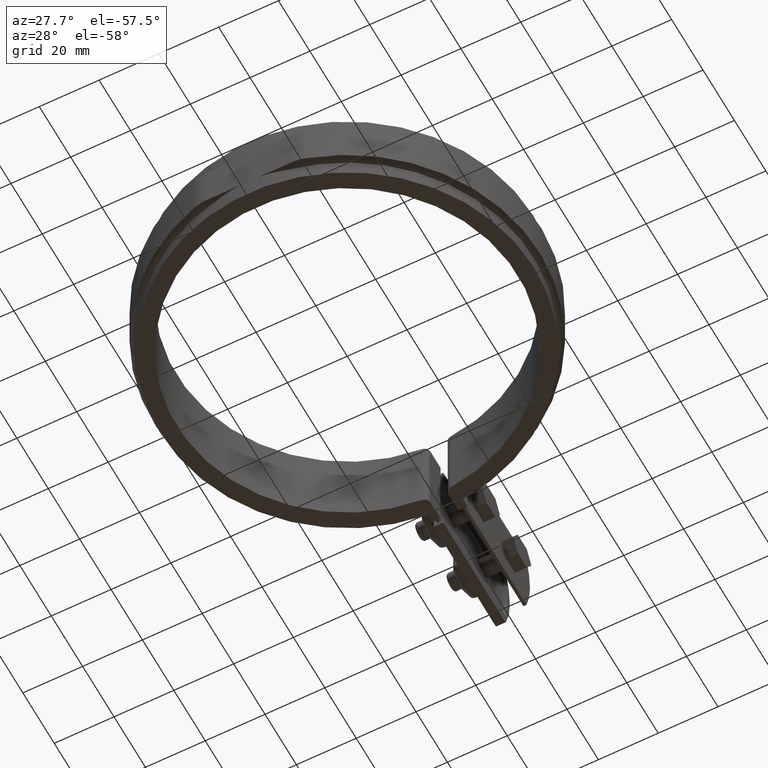
[diagram: clean part render]
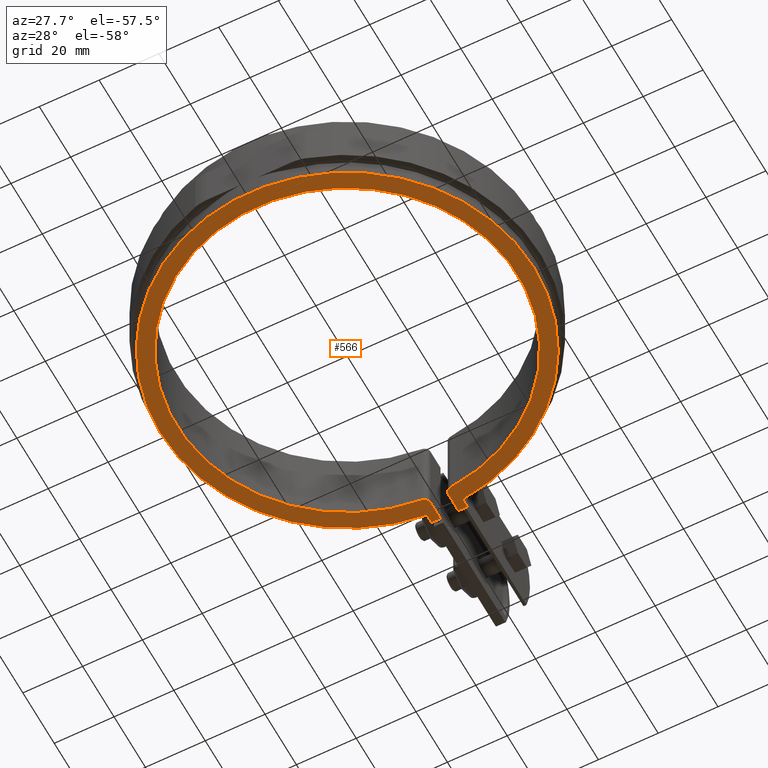
[diagram: same view with one face highlighted and labeled with its STEP entity id]
A machine part, auxiliary view. The second image highlights one B-rep face of the part: STEP entity #566.
In plain terms, the highlighted planar face has unit normal (0, 0, -1).
Its self-contained STEP definition (entity closure, byte-faithful):
#566 = ADVANCED_FACE( '', ( #1046 ), #1047, .T. );
#1046 = FACE_OUTER_BOUND( '', #2365, .T. );
#1047 = PLANE( '', #2366 );
#2365 = EDGE_LOOP( '', ( #4960, #4961, #4962, #4963, #4964, #4965, #4966, #4967, #4968, #4969 ) );
#2366 = AXIS2_PLACEMENT_3D( '', #4970, #4971, #4972 );
#4960 = ORIENTED_EDGE( '', *, *, #7293, .F. );
#4961 = ORIENTED_EDGE( '', *, *, #7254, .F. );
#4962 = ORIENTED_EDGE( '', *, *, #7224, .F. );
#4963 = ORIENTED_EDGE( '', *, *, #7251, .F. );
#4964 = ORIENTED_EDGE( '', *, *, #7239, .F. );
#4965 = ORIENTED_EDGE( '', *, *, #7289, .F. );
#4966 = ORIENTED_EDGE( '', *, *, #7294, .F. );
#4967 = ORIENTED_EDGE( '', *, *, #7295, .F. );
#4968 = ORIENTED_EDGE( '', *, *, #7296, .F. );
#4969 = ORIENTED_EDGE( '', *, *, #7202, .F. );
#4970 = CARTESIAN_POINT( '', ( 5.23473201317391, 60.6634495591627, -14.0000000000000 ) );
#4971 = DIRECTION( '', ( 0.000000000000000, 0.000000000000000, -1.00000000000000 ) );
#4972 = DIRECTION( '', ( 0.112903225806450, 0.993605989113642, 0.000000000000000 ) );
#7202 = EDGE_CURVE( '', #8332, #8334, #8335, .T. );
#7224 = EDGE_CURVE( '', #8362, #8364, #8365, .T. );
#7239 = EDGE_CURVE( '', #8392, #8375, #8394, .T. );
#7251 = EDGE_CURVE( '', #8375, #8362, #8414, .T. );
#7254 = EDGE_CURVE( '', #8364, #8415, #8419, .T. );
#7289 = EDGE_CURVE( '', #8474, #8392, #8476, .T. );
#7293 = EDGE_CURVE( '', #8415, #8332, #8481, .T. );
#7294 = EDGE_CURVE( '', #8482, #8474, #8483, .T. );
#7295 = EDGE_CURVE( '', #8484, #8482, #8485, .T. );
#7296 = EDGE_CURVE( '', #8334, #8484, #8486, .T. );
#8332 = VERTEX_POINT( '', #12087 );
#8334 = VERTEX_POINT( '', #12090 );
#8335 = CIRCLE( '', #12091, 2.00000000000000 );
#8362 = VERTEX_POINT( '', #12138 );
#8364 = VERTEX_POINT( '', #12141 );
#8365 = LINE( '', #12142, #12143 );
#8375 = VERTEX_POINT( '', #12160 );
#8392 = VERTEX_POINT( '', #12189 );
#8394 = LINE( '', #12192, #12193 );
#8414 = CIRCLE( '', #12215, 62.5000000000000 );
#8415 = VERTEX_POINT( '', #12216 );
#8419 = LINE( '', #12222, #12223 );
#8474 = VERTEX_POINT( '', #12307 );
#8476 = LINE( '', #12310, #12311 );
#8481 = LINE( '', #12319, #12320 );
#8482 = VERTEX_POINT( '', #12321 );
#8483 = LINE( '', #12322, #12323 );
#8484 = VERTEX_POINT( '', #12324 );
#8485 = CIRCLE( '', #12325, 2.00000000000000 );
#8486 = CIRCLE( '', #12326, 57.0000000000000 );
#12087 = CARTESIAN_POINT( '', ( 3.00000000000000, 58.7877538267963, -14.0000000000000 ) );
#12090 = CARTESIAN_POINT( '', ( 4.83050847457626, 56.7949486123287, -14.0000000000000 ) );
#12091 = AXIS2_PLACEMENT_3D( '', #14100, #14101, #14102 );
#12138 = CARTESIAN_POINT( '', ( 6.00000000000003, 62.2113333726259, -14.0000000000000 ) );
#12141 = CARTESIAN_POINT( '', ( 6.00000000000000, 65.1500000000000, -14.0000000000000 ) );
#12142 = CARTESIAN_POINT( '', ( 6.00000000000000, 62.2113333726259, -14.0000000000000 ) );
#12143 = VECTOR( '', #14127, 1000.00000000000 );
#12160 = CARTESIAN_POINT( '', ( -6.00000000000000, 62.2113333726259, -14.0000000000000 ) );
#12189 = CARTESIAN_POINT( '', ( -5.99999999999999, 65.1500000000000, -14.0000000000000 ) );
#12192 = CARTESIAN_POINT( '', ( -6.00000000000000, 65.1500000000000, -14.0000000000000 ) );
#12193 = VECTOR( '', #14139, 1000.00000000000 );
#12215 = AXIS2_PLACEMENT_3D( '', #14169, #14170, #14171 );
#12216 = CARTESIAN_POINT( '', ( 3.00000000000001, 65.1500000000000, -14.0000000000000 ) );
#12222 = CARTESIAN_POINT( '', ( 6.00000000000003, 65.1500000000000, -14.0000000000000 ) );
#12223 = VECTOR( '', #14174, 1000.00000000000 );
#12307 = CARTESIAN_POINT( '', ( -2.99999999999995, 65.1500000000000, -14.0000000000000 ) );
#12310 = CARTESIAN_POINT( '', ( -4.99999999999999, 65.1500000000000, -14.0000000000000 ) );
#12311 = VECTOR( '', #14232, 1000.00000000000 );
#12319 = CARTESIAN_POINT( '', ( 3.00000000000000, 65.1500000000000, -14.0000000000000 ) );
#12320 = VECTOR( '', #14236, 1000.00000000000 );
#12321 = CARTESIAN_POINT( '', ( -2.99999999999995, 58.7877538267963, -14.0000000000000 ) );
#12322 = CARTESIAN_POINT( '', ( -2.99999999999995, 58.7877538267963, -14.0000000000000 ) );
#12323 = VECTOR( '', #14237, 1000.00000000000 );
#12324 = CARTESIAN_POINT( '', ( -4.83050847457618, 56.7949486123287, -14.0000000000000 ) );
#12325 = AXIS2_PLACEMENT_3D( '', #14238, #14239, #14240 );
#12326 = AXIS2_PLACEMENT_3D( '', #14241, #14242, #14243 );
#14100 = CARTESIAN_POINT( '', ( 5.00000000000000, 58.7877538267963, -14.0000000000000 ) );
#14101 = DIRECTION( '', ( 0.000000000000000, 0.000000000000000, 1.00000000000000 ) );
#14102 = DIRECTION( '', ( -1.00000000000000, 1.23512311489549E-015, 0.000000000000000 ) );
#14127 = DIRECTION( '', ( 4.16333634234434E-017, 1.00000000000000, 0.000000000000000 ) );
#14139 = DIRECTION( '', ( -4.16333634234434E-017, -1.00000000000000, 0.000000000000000 ) );
#14169 = CARTESIAN_POINT( '', ( -8.67361737988404E-016, -6.93889390390723E-015, -14.0000000000000 ) );
#14170 = DIRECTION( '', ( 0.000000000000000, 0.000000000000000, 1.00000000000000 ) );
#14171 = DIRECTION( '', ( 1.00000000000000, -4.16333634234434E-017, 0.000000000000000 ) );
#14174 = DIRECTION( '', ( -1.00000000000000, 1.38777878078145E-017, 0.000000000000000 ) );
#14232 = DIRECTION( '', ( -1.00000000000000, 1.38777878078145E-017, 0.000000000000000 ) );
#14236 = DIRECTION( '', ( 0.000000000000000, -1.00000000000000, 0.000000000000000 ) );
#14237 = DIRECTION( '', ( 0.000000000000000, 1.00000000000000, 0.000000000000000 ) );
#14238 = CARTESIAN_POINT( '', ( -4.99999999999995, 58.7877538267963, -14.0000000000000 ) );
#14239 = DIRECTION( '', ( 0.000000000000000, 0.000000000000000, 1.00000000000000 ) );
#14240 = DIRECTION( '', ( 1.00000000000000, -1.19348975147204E-015, 0.000000000000000 ) );
#14241 = CARTESIAN_POINT( '', ( 2.60208521396521E-015, 3.46944695195361E-014, -14.0000000000000 ) );
#14242 = DIRECTION( '', ( 0.000000000000000, 0.000000000000000, -1.00000000000000 ) );
#14243 = DIRECTION( '', ( 1.00000000000000, 0.000000000000000, 0.000000000000000 ) );